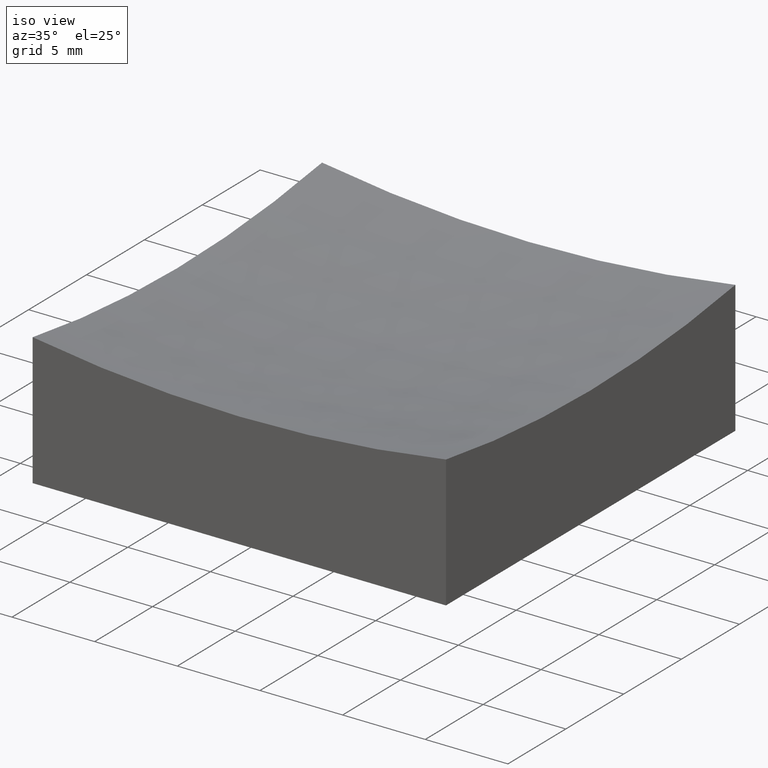
[diagram: clean part render]
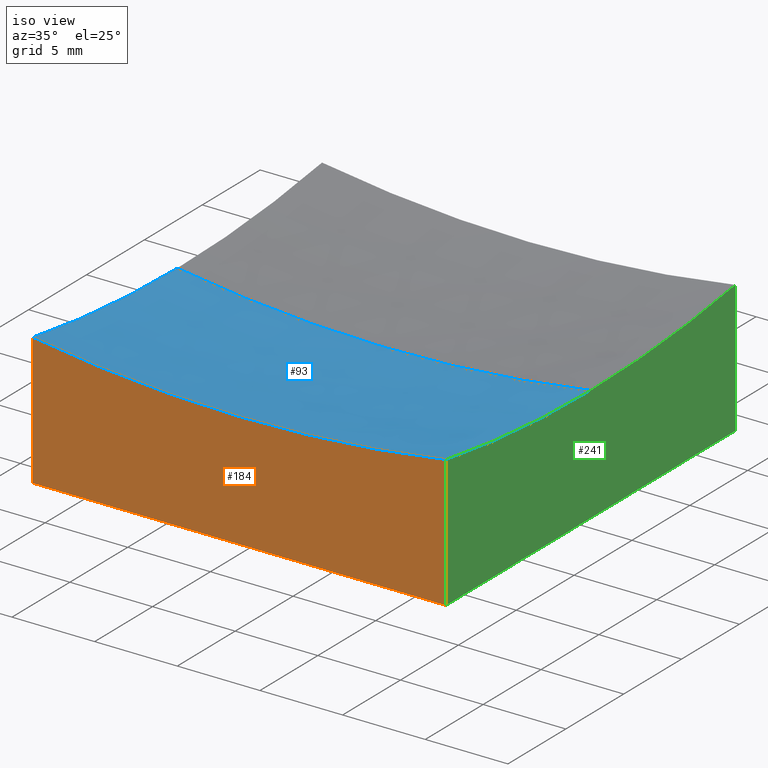
[diagram: same view with three faces highlighted in distinct colors, each labeled with its STEP entity id]
A machine part, iso view with three faces highlighted in distinct colors.
Their STEP definitions:

[orange] entity #184 — the highlighted planar face has unit normal (0, 1, 0).
#2 = ORIENTED_EDGE ( 'NONE', *, *, #121, .F. ) ;
#3 = ORIENTED_EDGE ( 'NONE', *, *, #33, .T. ) ;
#8 = LINE ( 'NONE', #94, #90 ) ;
#20 = VECTOR ( 'NONE', #212, 1000.000000000000000 ) ;
#23 = DIRECTION ( 'NONE',  ( 1.000000000000000000, 0.0000000000000000000, 0.0000000000000000000 ) ) ;
#30 = DIRECTION ( 'NONE',  ( -0.0000000000000000000, -0.0000000000000000000, -1.000000000000000000 ) ) ;
#33 = EDGE_CURVE ( 'NONE', #154, #36, #53, .T. ) ;
#35 = VECTOR ( 'NONE', #23, 1000.000000000000000 ) ;
#36 = VERTEX_POINT ( 'NONE', #162 ) ;
#37 = CARTESIAN_POINT ( 'NONE',  ( 1.053196247266724167E-14, -12.50000000000000000, 86.00000000000000000 ) ) ;
#41 = LINE ( 'NONE', #231, #35 ) ;
#49 = CARTESIAN_POINT ( 'NONE',  ( -12.49999999999999645, -12.50000000000000000, 0.0000000000000000000 ) ) ;
#53 = CIRCLE ( 'NONE', #252, 79.01740314639556573 ) ;
#60 = ORIENTED_EDGE ( 'NONE', *, *, #187, .T. ) ;
#61 = DIRECTION ( 'NONE',  ( 0.0000000000000000000, 1.000000000000000000, 0.0000000000000000000 ) ) ;
#64 = FACE_OUTER_BOUND ( 'NONE', #152, .T. ) ;
#68 = CARTESIAN_POINT ( 'NONE',  ( 12.50000000000000355, -12.50000000000000000, 7.977567328363813104 ) ) ;
#71 = AXIS2_PLACEMENT_3D ( 'NONE', #243, #144, #166 ) ;
#77 = VERTEX_POINT ( 'NONE', #139 ) ;
#90 = VECTOR ( 'NONE', #30, 1000.000000000000000 ) ;
#94 = CARTESIAN_POINT ( 'NONE',  ( -12.49999999999999645, -12.50000000000000000, 20.00000000000000000 ) ) ;
#121 = EDGE_CURVE ( 'NONE', #154, #77, #134, .T. ) ;
#129 = EDGE_CURVE ( 'NONE', #233, #77, #41, .T. ) ;
#134 = LINE ( 'NONE', #175, #20 ) ;
#139 = CARTESIAN_POINT ( 'NONE',  ( 12.50000000000000355, -12.50000000000000000, 0.0000000000000000000 ) ) ;
#144 = DIRECTION ( 'NONE',  ( 0.0000000000000000000, 1.000000000000000000, 0.0000000000000000000 ) ) ;
#152 = EDGE_LOOP ( 'NONE', ( #2, #3, #60, #230 ) ) ;
#154 = VERTEX_POINT ( 'NONE', #68 ) ;
#162 = CARTESIAN_POINT ( 'NONE',  ( -12.49999999999999645, -12.50000000000000000, 7.977567328363813104 ) ) ;
#166 = DIRECTION ( 'NONE',  ( 0.0000000000000000000, -0.0000000000000000000, 1.000000000000000000 ) ) ;
#175 = CARTESIAN_POINT ( 'NONE',  ( 12.50000000000000355, -12.50000000000000000, 20.00000000000000000 ) ) ;
#184 = ADVANCED_FACE ( 'NONE', ( #64 ), #245, .F. ) ;
#187 = EDGE_CURVE ( 'NONE', #36, #233, #8, .T. ) ;
#208 = DIRECTION ( 'NONE',  ( 0.0000000000000000000, 0.0000000000000000000, 1.000000000000000000 ) ) ;
#212 = DIRECTION ( 'NONE',  ( -0.0000000000000000000, -0.0000000000000000000, -1.000000000000000000 ) ) ;
#230 = ORIENTED_EDGE ( 'NONE', *, *, #129, .T. ) ;
#231 = CARTESIAN_POINT ( 'NONE',  ( -12.49999999999999645, -12.50000000000000000, 0.0000000000000000000 ) ) ;
#233 = VERTEX_POINT ( 'NONE', #49 ) ;
#243 = CARTESIAN_POINT ( 'NONE',  ( -12.49999999999999645, -12.50000000000000000, 20.00000000000000000 ) ) ;
#245 = PLANE ( 'NONE',  #71 ) ;
#252 = AXIS2_PLACEMENT_3D ( 'NONE', #37, #61, #208 ) ;

[blue] entity #93 — the highlighted spherical surface has radius 80 mm.
#13 = AXIS2_PLACEMENT_3D ( 'NONE', #113, #102, #17 ) ;
#17 = DIRECTION ( 'NONE',  ( 0.0000000000000000000, 0.0000000000000000000, -1.000000000000000000 ) ) ;
#24 = DIRECTION ( 'NONE',  ( 0.0000000000000000000, 1.000000000000000000, 0.0000000000000000000 ) ) ;
#27 = DIRECTION ( 'NONE',  ( -1.317221326114363248E-16, 1.000000000000000000, 0.0000000000000000000 ) ) ;
#32 = AXIS2_PLACEMENT_3D ( 'NONE', #200, #221, #27 ) ;
#33 = EDGE_CURVE ( 'NONE', #154, #36, #53, .T. ) ;
#34 = AXIS2_PLACEMENT_3D ( 'NONE', #89, #92, #147 ) ;
#36 = VERTEX_POINT ( 'NONE', #162 ) ;
#37 = CARTESIAN_POINT ( 'NONE',  ( 1.053196247266724167E-14, -12.50000000000000000, 86.00000000000000000 ) ) ;
#38 = EDGE_CURVE ( 'NONE', #249, #189, #205, .T. ) ;
#46 = CARTESIAN_POINT ( 'NONE',  ( 12.50000000000000178, 0.0000000000000000000, 6.982596853604452036 ) ) ;
#53 = CIRCLE ( 'NONE', #252, 79.01740314639556573 ) ;
#55 = ORIENTED_EDGE ( 'NONE', *, *, #33, .F. ) ;
#61 = DIRECTION ( 'NONE',  ( 0.0000000000000000000, 1.000000000000000000, 0.0000000000000000000 ) ) ;
#68 = CARTESIAN_POINT ( 'NONE',  ( 12.50000000000000355, -12.50000000000000000, 7.977567328363813104 ) ) ;
#73 = EDGE_CURVE ( 'NONE', #249, #114, #150, .T. ) ;
#79 = CARTESIAN_POINT ( 'NONE',  ( 1.053196247266724167E-14, 0.0000000000000000000, 86.00000000000000000 ) ) ;
#87 = CARTESIAN_POINT ( 'NONE',  ( 3.458540119970568356E-15, 0.0000000000000000000, 5.999999999999991118 ) ) ;
#89 = CARTESIAN_POINT ( 'NONE',  ( 12.50000000000000178, 1.734723475976805911E-15, 86.00000000000000000 ) ) ;
#92 = DIRECTION ( 'NONE',  ( 1.000000000000000000, 1.387778780781445676E-16, -0.0000000000000000000 ) ) ;
#93 = ADVANCED_FACE ( 'NONE', ( #197 ), #157, .F. ) ;
#102 = DIRECTION ( 'NONE',  ( 0.0000000000000000000, -1.000000000000000000, -0.0000000000000000000 ) ) ;
#113 = CARTESIAN_POINT ( 'NONE',  ( 1.053196247266724167E-14, 0.0000000000000000000, 86.00000000000000000 ) ) ;
#114 = VERTEX_POINT ( 'NONE', #161 ) ;
#130 = ORIENTED_EDGE ( 'NONE', *, *, #180, .F. ) ;
#137 = EDGE_LOOP ( 'NONE', ( #250, #170, #130, #55, #191 ) ) ;
#138 = DIRECTION ( 'NONE',  ( 1.000000000000000000, 0.0000000000000000000, -1.734723475976806848E-16 ) ) ;
#147 = DIRECTION ( 'NONE',  ( -1.317221326114363248E-16, 1.000000000000000000, 0.0000000000000000000 ) ) ;
#148 = AXIS2_PLACEMENT_3D ( 'NONE', #158, #24, #138 ) ;
#150 = CIRCLE ( 'NONE', #220, 80.00000000000001421 ) ;
#154 = VERTEX_POINT ( 'NONE', #68 ) ;
#157 = SPHERICAL_SURFACE ( 'NONE', #148, 80.00000000000001421 ) ;
#158 = CARTESIAN_POINT ( 'NONE',  ( 1.053196247266724167E-14, 0.0000000000000000000, 86.00000000000000000 ) ) ;
#161 = CARTESIAN_POINT ( 'NONE',  ( -12.49999999999999645, 1.530808498934191127E-15, 6.982596853604452036 ) ) ;
#162 = CARTESIAN_POINT ( 'NONE',  ( -12.49999999999999645, -12.50000000000000000, 7.977567328363813104 ) ) ;
#170 = ORIENTED_EDGE ( 'NONE', *, *, #73, .T. ) ;
#177 = DIRECTION ( 'NONE',  ( -1.000000000000000000, 1.224646799147353207E-16, 0.0000000000000000000 ) ) ;
#180 = EDGE_CURVE ( 'NONE', #36, #114, #193, .T. ) ;
#189 = VERTEX_POINT ( 'NONE', #46 ) ;
#190 = DIRECTION ( 'NONE',  ( 1.224646799147353207E-16, 1.000000000000000000, -1.832685396736843925E-32 ) ) ;
#191 = ORIENTED_EDGE ( 'NONE', *, *, #214, .T. ) ;
#193 = CIRCLE ( 'NONE', #32, 79.01740314639556573 ) ;
#197 = FACE_OUTER_BOUND ( 'NONE', #137, .T. ) ;
#200 = CARTESIAN_POINT ( 'NONE',  ( -12.49999999999999822, -1.734723475976808278E-15, 86.00000000000000000 ) ) ;
#201 = CIRCLE ( 'NONE', #34, 79.01740314639556573 ) ;
#205 = CIRCLE ( 'NONE', #13, 80.00000000000001421 ) ;
#208 = DIRECTION ( 'NONE',  ( 0.0000000000000000000, 0.0000000000000000000, 1.000000000000000000 ) ) ;
#214 = EDGE_CURVE ( 'NONE', #154, #189, #201, .T. ) ;
#220 = AXIS2_PLACEMENT_3D ( 'NONE', #79, #190, #177 ) ;
#221 = DIRECTION ( 'NONE',  ( 1.000000000000000000, 1.387778780781445676E-16, -0.0000000000000000000 ) ) ;
#249 = VERTEX_POINT ( 'NONE', #87 ) ;
#250 = ORIENTED_EDGE ( 'NONE', *, *, #38, .F. ) ;
#252 = AXIS2_PLACEMENT_3D ( 'NONE', #37, #61, #208 ) ;

[green] entity #241 — the highlighted planar face has unit normal (1, 0, -0).
#6 = EDGE_CURVE ( 'NONE', #189, #131, #78, .T. ) ;
#19 = VERTEX_POINT ( 'NONE', #85 ) ;
#20 = VECTOR ( 'NONE', #212, 1000.000000000000000 ) ;
#22 = ORIENTED_EDGE ( 'NONE', *, *, #214, .F. ) ;
#28 = PLANE ( 'NONE',  #160 ) ;
#34 = AXIS2_PLACEMENT_3D ( 'NONE', #89, #92, #147 ) ;
#43 = DIRECTION ( 'NONE',  ( 1.387778780781445676E-16, -1.000000000000000000, 0.0000000000000000000 ) ) ;
#44 = EDGE_CURVE ( 'NONE', #19, #77, #182, .T. ) ;
#46 = CARTESIAN_POINT ( 'NONE',  ( 12.50000000000000178, 0.0000000000000000000, 6.982596853604452036 ) ) ;
#58 = CARTESIAN_POINT ( 'NONE',  ( 12.50000000000000000, 12.50000000000000000, 7.977567328363813104 ) ) ;
#63 = ORIENTED_EDGE ( 'NONE', *, *, #121, .T. ) ;
#68 = CARTESIAN_POINT ( 'NONE',  ( 12.50000000000000355, -12.50000000000000000, 7.977567328363813104 ) ) ;
#77 = VERTEX_POINT ( 'NONE', #139 ) ;
#78 = CIRCLE ( 'NONE', #123, 79.01740314639556573 ) ;
#85 = CARTESIAN_POINT ( 'NONE',  ( 12.50000000000000000, 12.50000000000000000, 0.0000000000000000000 ) ) ;
#89 = CARTESIAN_POINT ( 'NONE',  ( 12.50000000000000178, 1.734723475976805911E-15, 86.00000000000000000 ) ) ;
#92 = DIRECTION ( 'NONE',  ( 1.000000000000000000, 1.387778780781445676E-16, -0.0000000000000000000 ) ) ;
#95 = EDGE_CURVE ( 'NONE', #131, #19, #99, .T. ) ;
#96 = EDGE_LOOP ( 'NONE', ( #22, #63, #133, #141, #171 ) ) ;
#97 = DIRECTION ( 'NONE',  ( -1.317221326114363248E-16, 1.000000000000000000, 0.0000000000000000000 ) ) ;
#99 = LINE ( 'NONE', #192, #109 ) ;
#100 = CARTESIAN_POINT ( 'NONE',  ( 12.50000000000000000, 12.50000000000000000, 0.0000000000000000000 ) ) ;
#106 = DIRECTION ( 'NONE',  ( 1.000000000000000000, 1.387778780781445676E-16, -0.0000000000000000000 ) ) ;
#109 = VECTOR ( 'NONE', #238, 1000.000000000000000 ) ;
#121 = EDGE_CURVE ( 'NONE', #154, #77, #134, .T. ) ;
#123 = AXIS2_PLACEMENT_3D ( 'NONE', #217, #251, #97 ) ;
#124 = FACE_OUTER_BOUND ( 'NONE', #96, .T. ) ;
#131 = VERTEX_POINT ( 'NONE', #58 ) ;
#133 = ORIENTED_EDGE ( 'NONE', *, *, #44, .F. ) ;
#134 = LINE ( 'NONE', #175, #20 ) ;
#139 = CARTESIAN_POINT ( 'NONE',  ( 12.50000000000000355, -12.50000000000000000, 0.0000000000000000000 ) ) ;
#141 = ORIENTED_EDGE ( 'NONE', *, *, #95, .F. ) ;
#147 = DIRECTION ( 'NONE',  ( -1.317221326114363248E-16, 1.000000000000000000, 0.0000000000000000000 ) ) ;
#154 = VERTEX_POINT ( 'NONE', #68 ) ;
#160 = AXIS2_PLACEMENT_3D ( 'NONE', #202, #106, #199 ) ;
#171 = ORIENTED_EDGE ( 'NONE', *, *, #6, .F. ) ;
#175 = CARTESIAN_POINT ( 'NONE',  ( 12.50000000000000355, -12.50000000000000000, 20.00000000000000000 ) ) ;
#182 = LINE ( 'NONE', #100, #225 ) ;
#189 = VERTEX_POINT ( 'NONE', #46 ) ;
#192 = CARTESIAN_POINT ( 'NONE',  ( 12.50000000000000000, 12.50000000000000000, 20.00000000000000000 ) ) ;
#199 = DIRECTION ( 'NONE',  ( -1.387778780781445676E-16, 1.000000000000000000, 0.0000000000000000000 ) ) ;
#201 = CIRCLE ( 'NONE', #34, 79.01740314639556573 ) ;
#202 = CARTESIAN_POINT ( 'NONE',  ( 12.50000000000000000, 12.50000000000000000, 20.00000000000000000 ) ) ;
#212 = DIRECTION ( 'NONE',  ( -0.0000000000000000000, -0.0000000000000000000, -1.000000000000000000 ) ) ;
#214 = EDGE_CURVE ( 'NONE', #154, #189, #201, .T. ) ;
#217 = CARTESIAN_POINT ( 'NONE',  ( 12.50000000000000178, 1.734723475976805911E-15, 86.00000000000000000 ) ) ;
#225 = VECTOR ( 'NONE', #43, 1000.000000000000000 ) ;
#238 = DIRECTION ( 'NONE',  ( -0.0000000000000000000, -0.0000000000000000000, -1.000000000000000000 ) ) ;
#241 = ADVANCED_FACE ( 'NONE', ( #124 ), #28, .T. ) ;
#251 = DIRECTION ( 'NONE',  ( 1.000000000000000000, 1.387778780781445676E-16, -0.0000000000000000000 ) ) ;